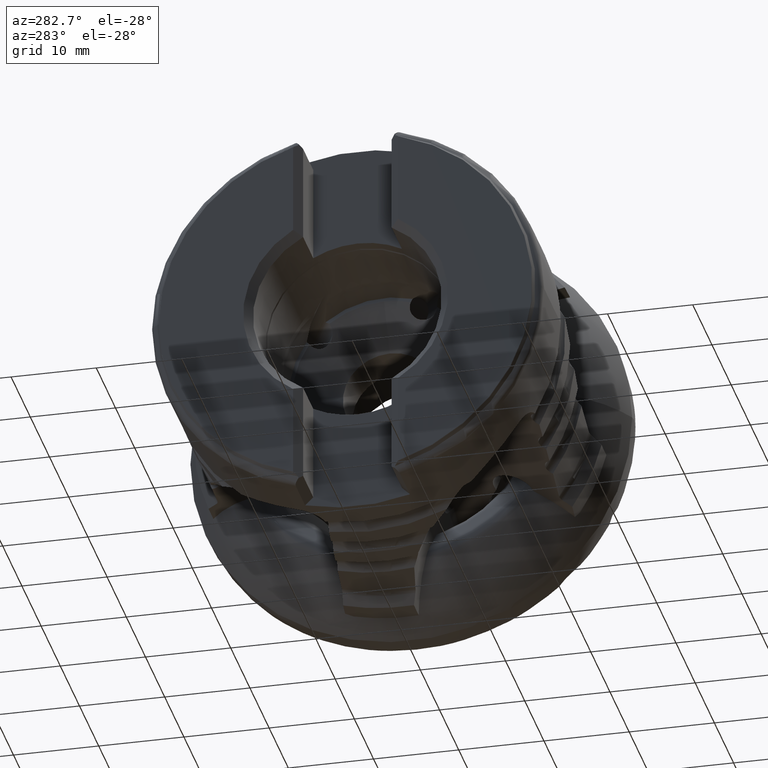
[diagram: clean part render]
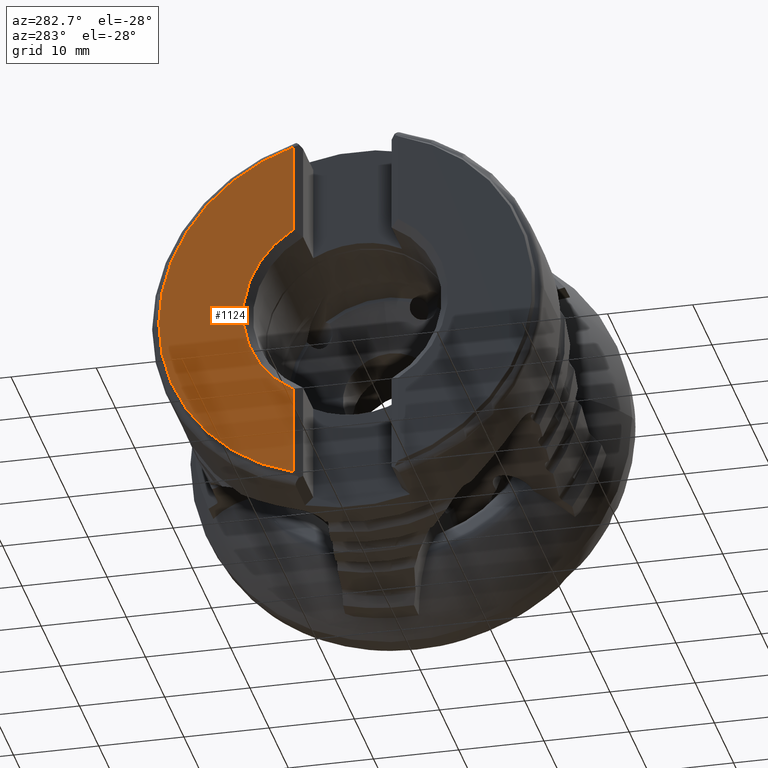
[diagram: same view with one face highlighted and labeled with its STEP entity id]
A machine part, auxiliary view. The second image highlights one B-rep face of the part: STEP entity #1124.
In plain terms, the highlighted planar face has unit normal (1, 0, -0).
Its self-contained STEP definition (entity closure, byte-faithful):
#1003 = VERTEX_POINT ( 'NONE', #10893 ) ;
#1124 = ADVANCED_FACE ( 'NONE', ( #3477 ), #11027, .F. ) ;
#3332 = CARTESIAN_POINT ( 'NONE',  ( -38.94999999999999600, -3.469446951953614200E-015, 0.0000000000000000000 ) ) ;
#3333 = DIRECTION ( 'NONE',  ( -1.000000000000000000, 0.0000000000000000000, 0.0000000000000000000 ) ) ;
#3334 = DIRECTION ( 'NONE',  ( 0.0000000000000000000, 1.776356839400250500E-015, -1.000000000000000000 ) ) ;
#3477 = FACE_OUTER_BOUND ( 'NONE', #4111, .T. ) ;
#4111 = EDGE_LOOP ( 'NONE', ( #8288, #8285, #8284, #7807, #7808 ) ) ;
#6601 = EDGE_CURVE ( 'NONE', #11222, #11270, #8241, .T. ) ;
#6615 = EDGE_CURVE ( 'NONE', #11227, #7523, #8274, .T. ) ;
#6628 = AXIS2_PLACEMENT_3D ( 'NONE', #11024, #11023, #11022 ) ;
#7095 = AXIS2_PLACEMENT_3D ( 'NONE', #3332, #3333, #3334 ) ;
#7192 = AXIS2_PLACEMENT_3D ( 'NONE', #8852, #8853, #8854 ) ;
#7194 = AXIS2_PLACEMENT_3D ( 'NONE', #8863, #8864, #8865 ) ;
#7523 = VERTEX_POINT ( 'NONE', #10676 ) ;
#7807 = ORIENTED_EDGE ( 'NONE', *, *, #10298, .F. ) ;
#7808 = ORIENTED_EDGE ( 'NONE', *, *, #6601, .F. ) ;
#8241 = LINE ( 'NONE', #10496, #8250 ) ;
#8250 = VECTOR ( 'NONE', #10508, 1000.000000000000000 ) ;
#8274 = LINE ( 'NONE', #10535, #8277 ) ;
#8277 = VECTOR ( 'NONE', #10536, 1000.000000000000000 ) ;
#8284 = ORIENTED_EDGE ( 'NONE', *, *, #6615, .F. ) ;
#8285 = ORIENTED_EDGE ( 'NONE', *, *, #10011, .T. ) ;
#8288 = ORIENTED_EDGE ( 'NONE', *, *, #10295, .T. ) ;
#8660 = CIRCLE ( 'NONE', #7095, 21.92228756555324100 ) ;
#8852 = CARTESIAN_POINT ( 'NONE',  ( -38.94999999999999600, -3.469446951953614200E-015, 0.0000000000000000000 ) ) ;
#8853 = DIRECTION ( 'NONE',  ( -1.000000000000000000, 0.0000000000000000000, 0.0000000000000000000 ) ) ;
#8854 = DIRECTION ( 'NONE',  ( 0.0000000000000000000, 0.0000000000000000000, -1.000000000000000000 ) ) ;
#8863 = CARTESIAN_POINT ( 'NONE',  ( -38.94999999999999600, 0.0000000000000000000, 0.0000000000000000000 ) ) ;
#8864 = DIRECTION ( 'NONE',  ( -1.000000000000000000, 0.0000000000000000000, 0.0000000000000000000 ) ) ;
#8865 = DIRECTION ( 'NONE',  ( 0.0000000000000000000, 0.0000000000000000000, -1.000000000000000000 ) ) ;
#8913 = CARTESIAN_POINT ( 'NONE',  ( -38.94999999999999600, 6.150000000000006600, 21.04196264864117100 ) ) ;
#8918 = CARTESIAN_POINT ( 'NONE',  ( -38.94999999999999600, 6.150000000000007500, -10.33335013439495300 ) ) ;
#8960 = CARTESIAN_POINT ( 'NONE',  ( -38.94999999999999600, 6.150000000000007500, 10.33335013439495300 ) ) ;
#10011 = EDGE_CURVE ( 'NONE', #1003, #7523, #8660, .T. ) ;
#10295 = EDGE_CURVE ( 'NONE', #11222, #1003, #12143, .T. ) ;
#10298 = EDGE_CURVE ( 'NONE', #11270, #11227, #12145, .T. ) ;
#10496 = CARTESIAN_POINT ( 'NONE',  ( -38.94999999999999600, 6.150000000000007500, -35.00000000000000000 ) ) ;
#10508 = DIRECTION ( 'NONE',  ( 0.0000000000000000000, 0.0000000000000000000, -1.000000000000000000 ) ) ;
#10535 = CARTESIAN_POINT ( 'NONE',  ( -38.94999999999999600, 6.150000000000007500, -35.00000000000000000 ) ) ;
#10536 = DIRECTION ( 'NONE',  ( 0.0000000000000000000, 0.0000000000000000000, -1.000000000000000000 ) ) ;
#10676 = CARTESIAN_POINT ( 'NONE',  ( -38.95000000000000300, 6.150000000000014600, -21.04196264864116400 ) ) ;
#10893 = CARTESIAN_POINT ( 'NONE',  ( -38.94999999999999600, 21.92228756555323700, 0.0000000000000000000 ) ) ;
#11022 = DIRECTION ( 'NONE',  ( -0.0000000000000000000, 0.0000000000000000000, -1.000000000000000000 ) ) ;
#11023 = DIRECTION ( 'NONE',  ( 1.000000000000000000, 0.0000000000000000000, -0.0000000000000000000 ) ) ;
#11024 = CARTESIAN_POINT ( 'NONE',  ( -38.94999999999999600, -7.965256267788717400E-015, 0.0000000000000000000 ) ) ;
#11027 = PLANE ( 'NONE',  #6628 ) ;
#11222 = VERTEX_POINT ( 'NONE', #8913 ) ;
#11227 = VERTEX_POINT ( 'NONE', #8918 ) ;
#11270 = VERTEX_POINT ( 'NONE', #8960 ) ;
#12143 = CIRCLE ( 'NONE', #7192, 21.92228756555324100 ) ;
#12145 = CIRCLE ( 'NONE', #7194, 12.02500000000001100 ) ;